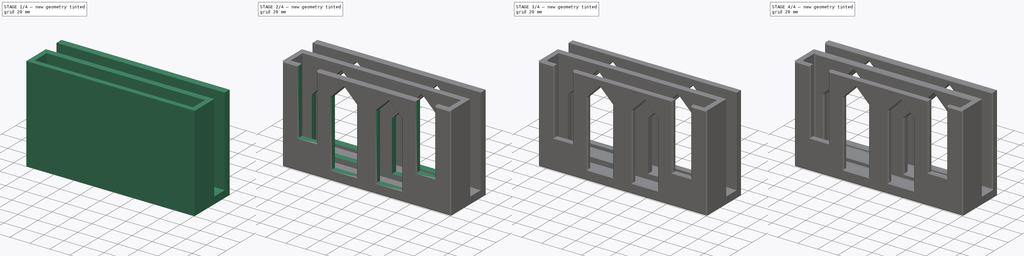
[diagram: build sequence overview — one tinted view per stage of 4, left to right]
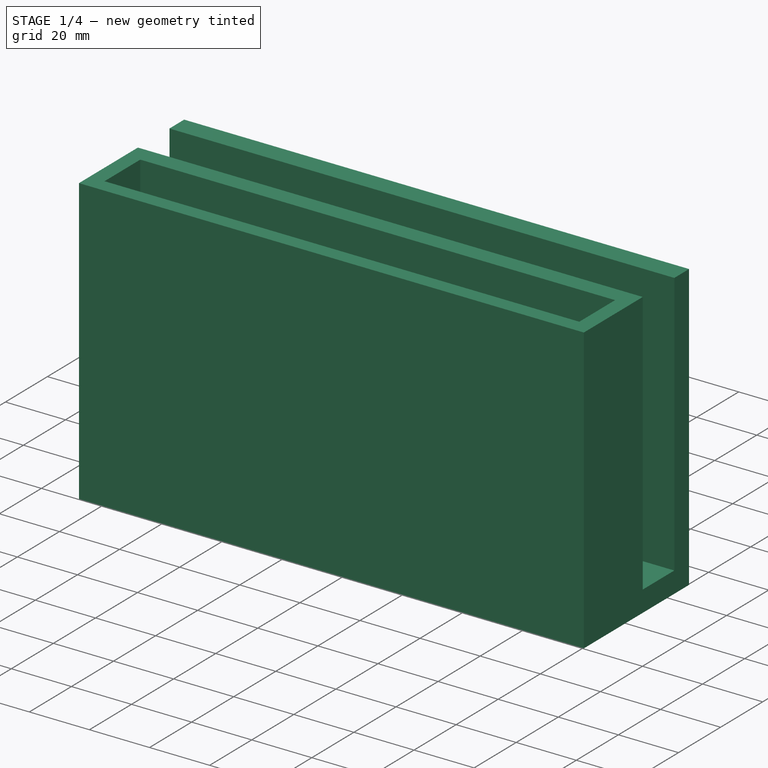
[diagram: stage 1 of 4 — iso view after this stage's code; geometry added in this stage tinted green]
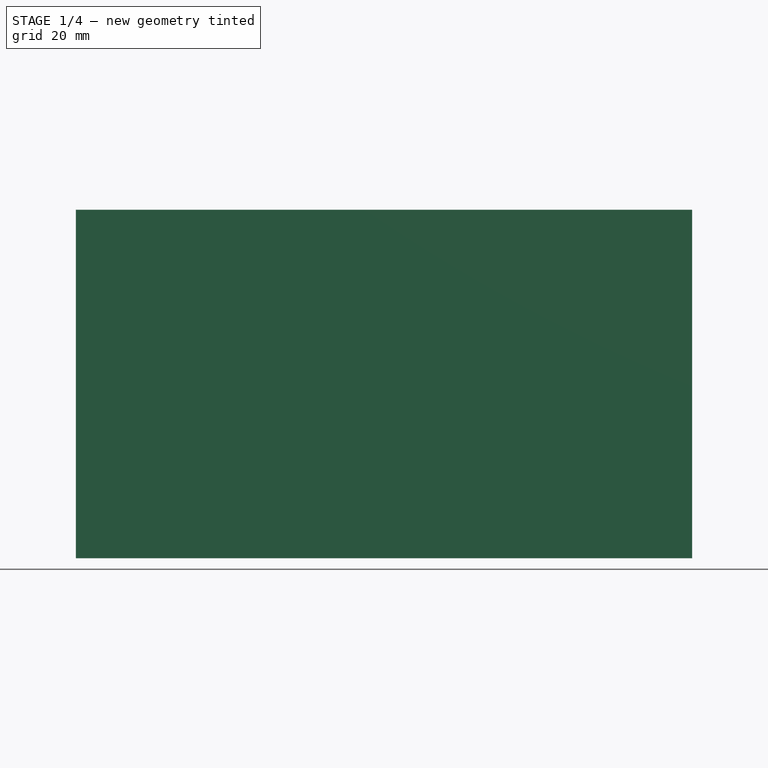
[diagram: stage 1 of 4 — front view after this stage's code; geometry added in this stage tinted green]
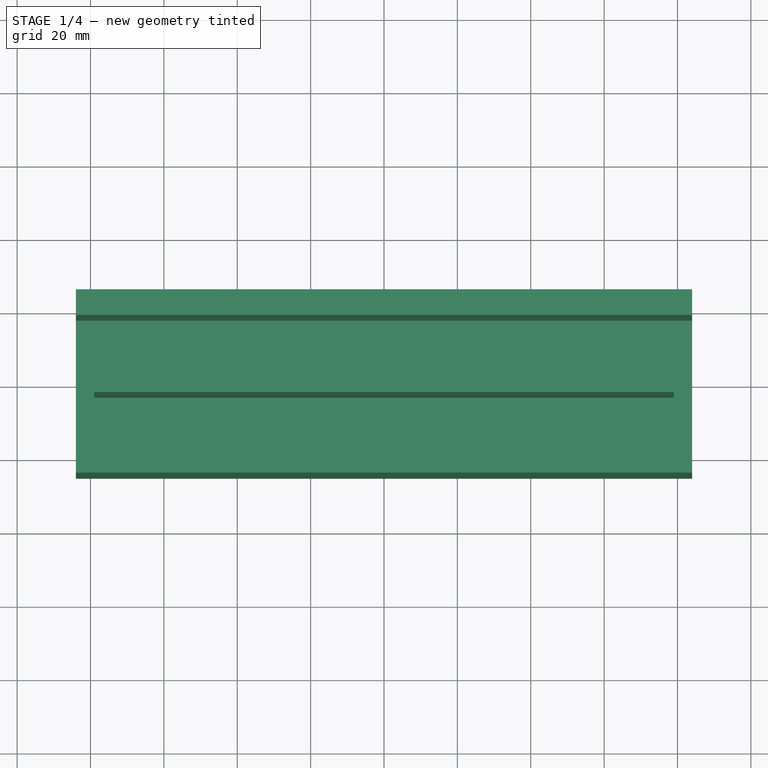
[diagram: stage 1 of 4 — top view after this stage's code; geometry added in this stage tinted green]
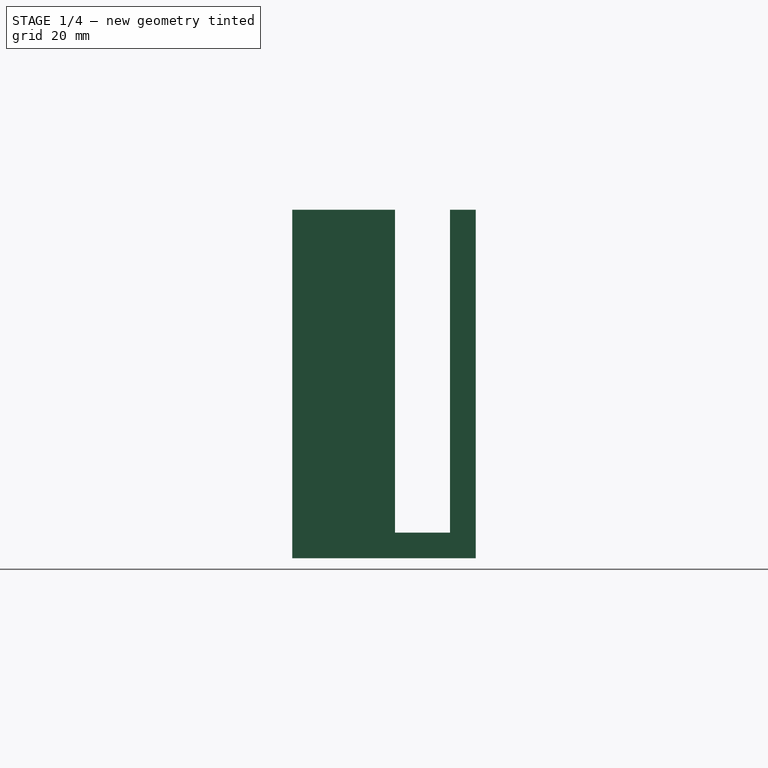
[diagram: stage 1 of 4 — right view after this stage's code; geometry added in this stage tinted green]
FCSTD DOCUMENT  (FreeCAD 0.16R)
Label: SwitchCase
License: All rights reserved
LicenseURL: http://en.wikipedia.org/wiki/All_rights_reserved
objects: Sketcher::SketchObject×5, PartDesign::Chamfer×5, PartDesign::Pocket×4, PartDesign::Pad×1, PartDesign::Fillet×1
note: 21 computed .brp shape members not serialized (recipe doc carries the construction recipe); baked Part::Feature solids carry a one-line shape summary decoded from their .brp

FEATURE [Sketcher::SketchObject] Sketch
  sketch-geometry (4):
    g0: LineSegment StartX=-84 StartY=25 StartZ=0 EndX=84 EndY=25 EndZ=0
    g1: LineSegment StartX=84 StartY=25 StartZ=0 EndX=84 EndY=-25 EndZ=0
    g2: LineSegment StartX=84 StartY=-25 StartZ=0 EndX=-84 EndY=-25 EndZ=0
    g3: LineSegment StartX=-84 StartY=-25 StartZ=0 EndX=-84 EndY=25 EndZ=0
  constraints (11):
    c: Coincident(g0,g1)
    c: Coincident(g1,g2)
    c: Coincident(g2,g3)
    c: Coincident(g3,g0)
    c: Horizontal(g0)
    c: Horizontal(g2)
    c: Vertical(g1)
    c: Vertical(g3)
    c: Symmetric(g0,g2,g-1)
    c: Distance(g1) = 50
    c: Distance(g0) = 168
FEATURE [PartDesign::Pad] Pad
  Length = 95
  Length2 = 100
  Sketch = -> Sketch
  Type = 0
FEATURE [Sketcher::SketchObject] Sketch001
  Placement = pos=(0,0,95) rot=(0,0,1;0rad)
  Support = -> Pad [Face6]
  sketch-geometry (4):
    g0: LineSegment StartX=-100 StartY=18 StartZ=0 EndX=100 EndY=18 EndZ=0
    g1: LineSegment StartX=100 StartY=18 StartZ=0 EndX=100 EndY=3 EndZ=0
    g2: LineSegment StartX=100 StartY=3 StartZ=0 EndX=-100 EndY=3 EndZ=0
    g3: LineSegment StartX=-100 StartY=3 StartZ=0 EndX=-100 EndY=18 EndZ=0
  constraints (12):
    c: Coincident(g0,g1)
    c: Coincident(g1,g2)
    c: Coincident(g2,g3)
    c: Coincident(g3,g0)
    c: Horizontal(g0)
    c: Horizontal(g2)
    c: Vertical(g1)
    c: Vertical(g3)
    c: Distance(g1) = 15
    c: Symmetric(g0,g0,g-2)
    c: Distance(g0) = 200
    c: DistanceY(g0) = 18
FEATURE [PartDesign::Pocket] Pocket
  Length = 88
  Sketch = -> Sketch001
  Type = 0
FEATURE [Sketcher::SketchObject] Sketch002
  Placement = pos=(0,0,95) rot=(0,0,1;0rad)
  Support = -> Pocket [Face9]
  sketch-geometry (4):
    g0: LineSegment StartX=-79 StartY=-3 StartZ=0 EndX=79 EndY=-3 EndZ=0
    g1: LineSegment StartX=79 StartY=-3 StartZ=0 EndX=79 EndY=-20 EndZ=0
    g2: LineSegment StartX=79 StartY=-20 StartZ=0 EndX=-79 EndY=-20 EndZ=0
    g3: LineSegment StartX=-79 StartY=-20 StartZ=0 EndX=-79 EndY=-3 EndZ=0
  constraints (12):
    c: Coincident(g0,g1)
    c: Coincident(g1,g2)
    c: Coincident(g2,g3)
    c: Coincident(g3,g0)
    c: Horizontal(g0)
    c: Horizontal(g2)
    c: Vertical(g1)
    c: Vertical(g3)
    c: Symmetric(g0,g0,g-2)
    c: Distance(g1) = 17
    c: Distance(g0) = 158
    c: DistanceY(g1) = -20
FEATURE [PartDesign::Pocket] Pocket001
  Length = 90
  Sketch = -> Sketch002
  Type = 0
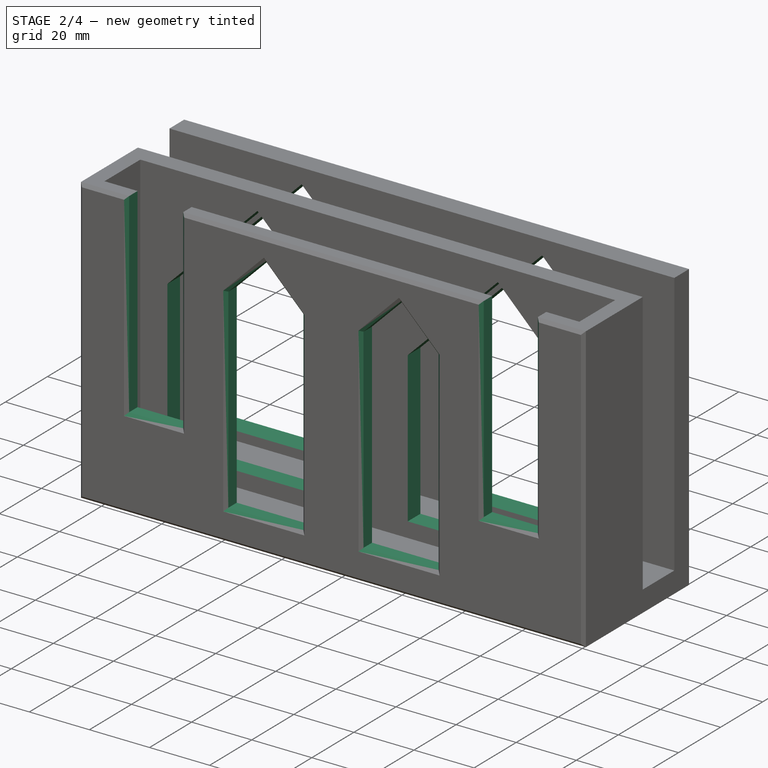
[diagram: stage 2 of 4 — iso view after this stage's code; geometry added in this stage tinted green]
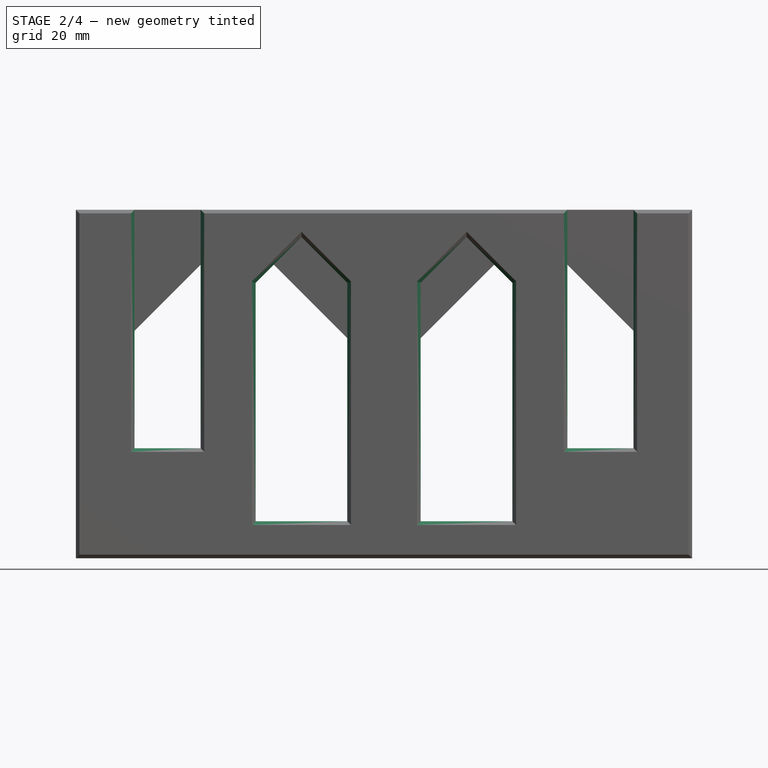
[diagram: stage 2 of 4 — front view after this stage's code; geometry added in this stage tinted green]
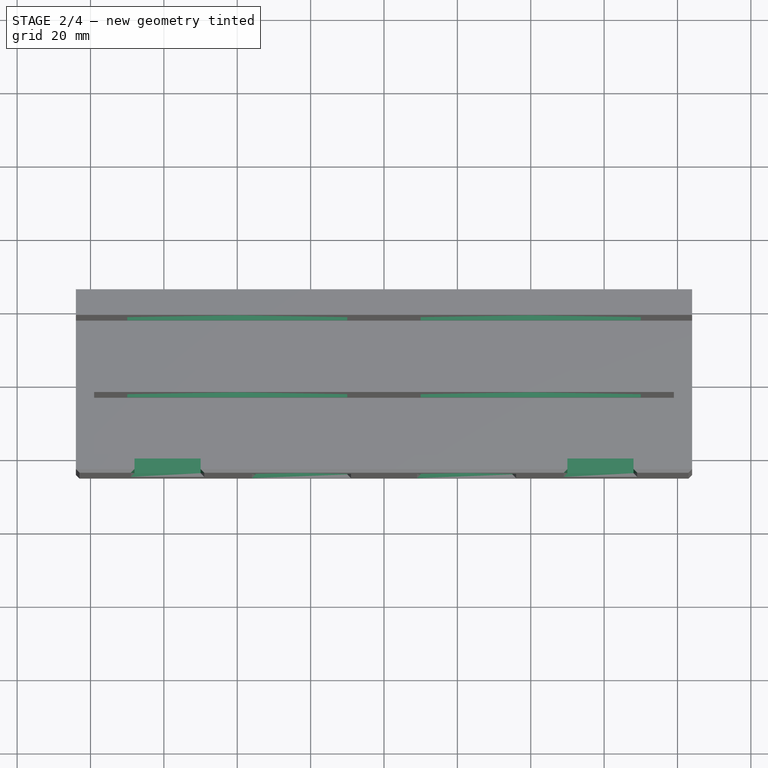
[diagram: stage 2 of 4 — top view after this stage's code; geometry added in this stage tinted green]
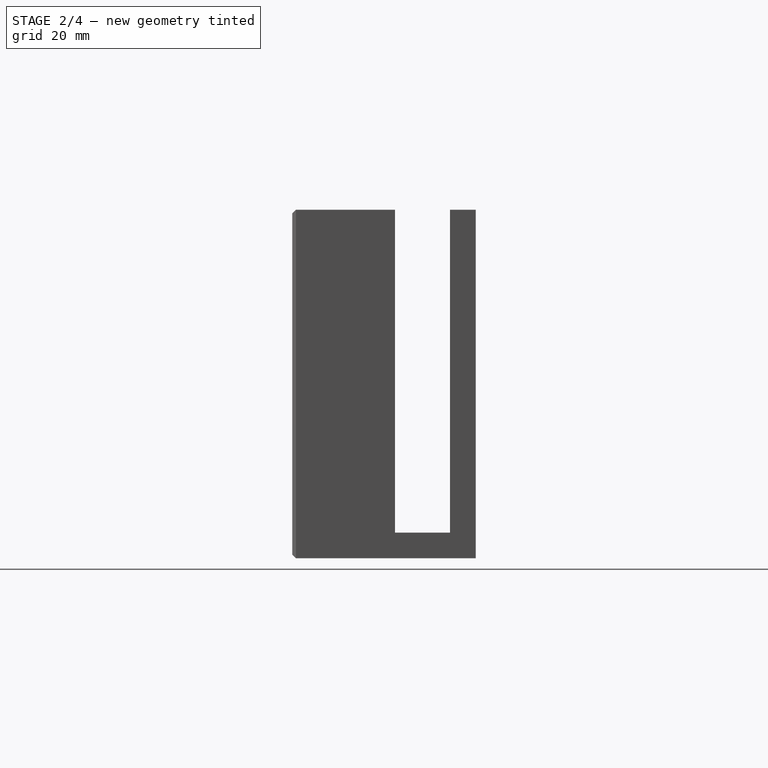
[diagram: stage 2 of 4 — right view after this stage's code; geometry added in this stage tinted green]
FEATURE [Sketcher::SketchObject] Sketch003
  Placement = pos=(0,-25,0) rot=(1,0,0;1.5708rad)
  Support = -> Pocket001 [Face10]
  sketch-geometry (18):
    g0: LineSegment StartX=-10 StartY=75.0798 StartZ=0 EndX=-10 EndY=10.0798 EndZ=0
    g1: LineSegment StartX=-10 StartY=10.0798 StartZ=0 EndX=-35 EndY=10.0798 EndZ=0
    g2: LineSegment StartX=-35 StartY=10.0798 StartZ=0 EndX=-35 EndY=75.0798 EndZ=0
    g3: LineSegment StartX=35 StartY=75.0798 StartZ=0 EndX=35 EndY=10.0798 EndZ=0
    g4: LineSegment StartX=35 StartY=10.0798 StartZ=0 EndX=10 EndY=10.0798 EndZ=0
    g5: LineSegment StartX=10 StartY=10.0798 StartZ=0 EndX=10 EndY=75.0798 EndZ=0
    g6: LineSegment StartX=-35 StartY=75.0798 StartZ=0 EndX=-22.5 EndY=87.5798 EndZ=0
    g7: LineSegment StartX=-22.5 StartY=87.5798 StartZ=0 EndX=-10 EndY=75.0798 EndZ=0
    g8: LineSegment StartX=35 StartY=75.0798 StartZ=0 EndX=22.5 EndY=87.5798 EndZ=0
    g9: LineSegment StartX=22.5 StartY=87.5798 StartZ=0 EndX=10 EndY=75.0798 EndZ=0
    g10: LineSegment StartX=-68 StartY=122.971 StartZ=0 EndX=-50 EndY=122.971 EndZ=0
    g11: LineSegment StartX=-50 StartY=122.971 StartZ=0 EndX=-50 EndY=30 EndZ=0
    g12: LineSegment StartX=-50 StartY=30 StartZ=0 EndX=-68 EndY=30 EndZ=0
    g13: LineSegment StartX=-68 StartY=30 StartZ=0 EndX=-68 EndY=122.971 EndZ=0
    g14: LineSegment StartX=50 StartY=122.971 StartZ=0 EndX=68 EndY=122.971 EndZ=0
    g15: LineSegment StartX=68 StartY=122.971 StartZ=0 EndX=68 EndY=30 EndZ=0
    g16: LineSegment StartX=68 StartY=30 StartZ=0 EndX=50 EndY=30 EndZ=0
    g17: LineSegment StartX=50 StartY=30 StartZ=0 EndX=50 EndY=122.971 EndZ=0
  constraints (50):
    c: Coincident(g0,g1)
    c: Coincident(g1,g2)
    c: Horizontal(g1)
    c: Vertical(g0)
    c: Vertical(g2)
    c: Coincident(g3,g4)
    c: Coincident(g4,g5)
    c: Horizontal(g4)
    c: Vertical(g3)
    c: Vertical(g5)
    c: Symmetric(g5,g0,g-2)
    c: DistanceX(g-1,g5) = 10
    c: Distance(g0) = 65
    c: Coincident(g2,g6)
    c: Coincident(g6,g7)
    c: Coincident(g7,g0)
    c: Coincident(g3,g8)
    c: Coincident(g8,g9)
    c: Coincident(g9,g5)
    c: Equal(g8,g9)
    c: Equal(g9,g7)
    c: Equal(g7,g6)
    c: Angle(g6,g7) = 1.5708
    c: Equal(g2,g5)
    c: Equal(g3,g5)
    c: Equal(g2,g0)
    c: Distance(g1) = 25
    c: Equal(g4,g1)
    c: Coincident(g10,g11)
    c: Coincident(g11,g12)
    c: Coincident(g12,g13)
    c: Coincident(g13,g10)
    c: Horizontal(g10)
    c: Horizontal(g12)
    c: Vertical(g11)
    c: Vertical(g13)
    c: Coincident(g14,g15)
    c: Coincident(g15,g16)
    c: Coincident(g16,g17)
    c: Coincident(g17,g14)
    c: Horizontal(g14)
    c: Horizontal(g16)
    c: Vertical(g15)
    c: Vertical(g17)
    c: Equal(g14,g10)
    c: Distance(g10) = 18
    c: Symmetric(g10,g14,g-2)
    c: DistanceX(g14) = 50
    c: DistanceY(g12) = 30
    c: DistanceY(g15) = 30
FEATURE [PartDesign::Pocket] Pocket002
  Length = 5
  Sketch = -> Sketch003
  Type = 0
FEATURE [Sketcher::SketchObject] Sketch004
  Placement = pos=(0,25,0) rot=(0,0.707107,0.707107;3.14159rad)
  Support = -> Pocket002 [Face1]
  sketch-geometry (10):
    g0: LineSegment StartX=-40 StartY=90 StartZ=0 EndX=-70 EndY=60 EndZ=0
    g1: LineSegment StartX=-70 StartY=60 StartZ=0 EndX=-70 EndY=10 EndZ=0
    g2: LineSegment StartX=-70 StartY=10 StartZ=0 EndX=-10 EndY=10 EndZ=0
    g3: LineSegment StartX=-10 StartY=10 StartZ=0 EndX=-10 EndY=60 EndZ=0
    g4: LineSegment StartX=-10 StartY=60 StartZ=0 EndX=-40 EndY=90 EndZ=0
    g5: LineSegment StartX=40 StartY=90 StartZ=0 EndX=10 EndY=60 EndZ=0
    g6: LineSegment StartX=10 StartY=60 StartZ=0 EndX=10 EndY=10 EndZ=0
    g7: LineSegment StartX=10 StartY=10 StartZ=0 EndX=70 EndY=10 EndZ=0
    g8: LineSegment StartX=70 StartY=10 StartZ=0 EndX=70 EndY=60 EndZ=0
    g9: LineSegment StartX=70 StartY=60 StartZ=0 EndX=40 EndY=90 EndZ=0
  constraints (31):
    c: Coincident(g0,g1)
    c: Vertical(g1)
    c: Coincident(g1,g2)
    c: Horizontal(g2)
    c: Coincident(g2,g3)
    c: Vertical(g3)
    c: Coincident(g3,g4)
    c: Coincident(g4,g0)
    c: Coincident(g5,g6)
    c: Vertical(g6)
    c: Coincident(g6,g7)
    c: Horizontal(g7)
    c: Coincident(g7,g8)
    c: Vertical(g8)
    c: Coincident(g8,g9)
    c: Coincident(g9,g5)
    c: Equal(g9,g5)
    c: Equal(g5,g4)
    c: Equal(g4,g0)
    c: Angle(g0,g4) = 1.5708
    c: Angle(g5,g9) = 1.5708
    c: Equal(g1,g3)
    c: Equal(g3,g6)
    c: Equal(g6,g8)
    c: DistanceY(g6) = 10
    c: DistanceY(g2) = 10
    c: Symmetric(g5,g3,g-2)
    c: Equal(g2,g7)
    c: Distance(g2) = 60
    c: Distance(g3,g5) = 20
    c: Distance(g3) = 50
FEATURE [PartDesign::Pocket] Pocket003
  Length = 30
  Sketch = -> Sketch004
  Type = 0
FEATURE [PartDesign::Chamfer] Chamfer
  Base = -> Pocket003 [Edge23,Edge21,Edge64,Edge73,Edge74,Edge75,Edge76,Edge77,Edge78,Edge79,Edge72,Edge26,Edge80,Edge81,Edge82,Edge83,Edge84,Edge85,Edge86,Edge87,Edge88,Edge89]
  Size = 1
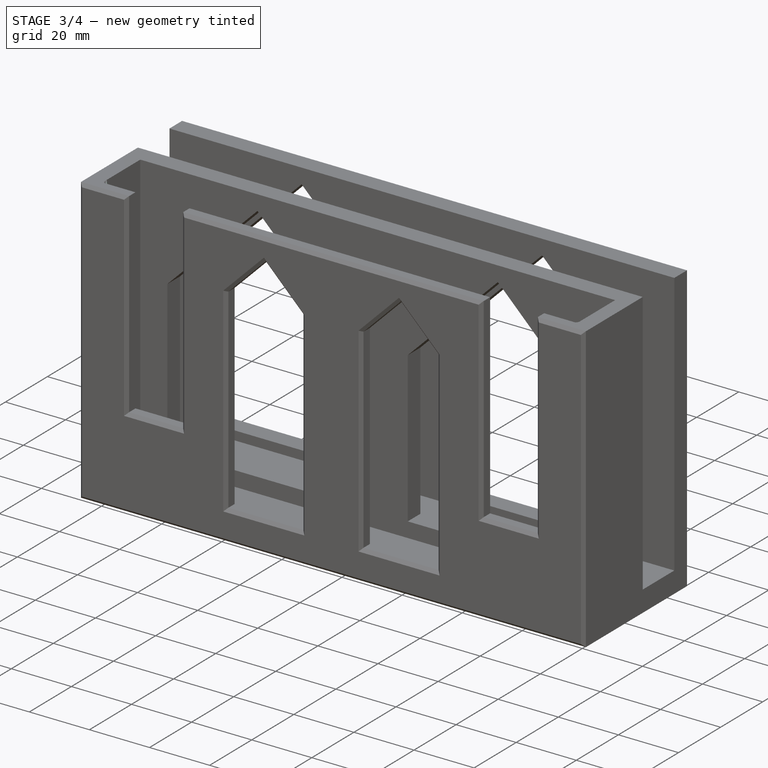
[diagram: stage 3 of 4 — iso view after this stage's code; geometry added in this stage tinted green]
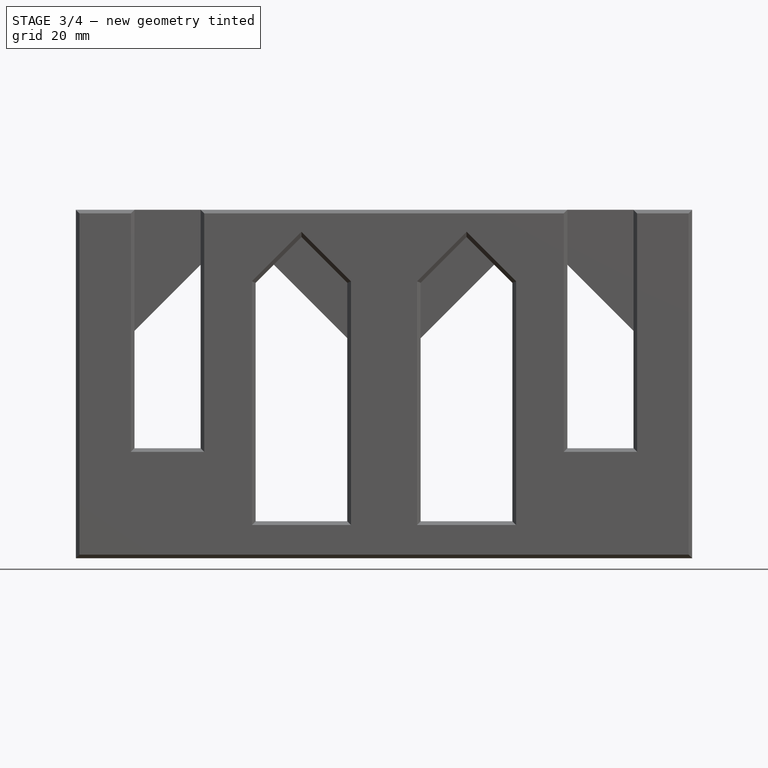
[diagram: stage 3 of 4 — front view after this stage's code; geometry added in this stage tinted green]
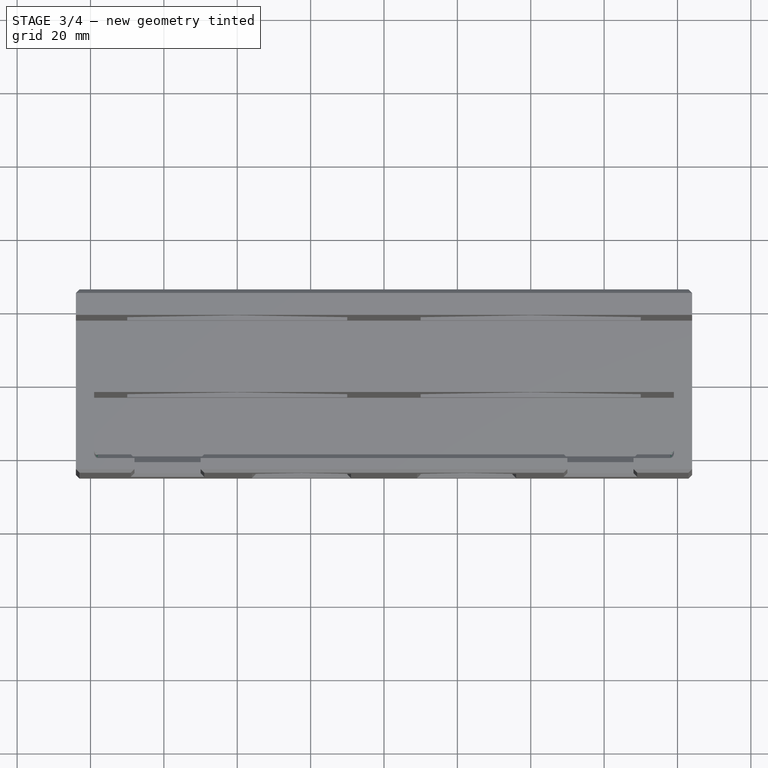
[diagram: stage 3 of 4 — top view after this stage's code; geometry added in this stage tinted green]
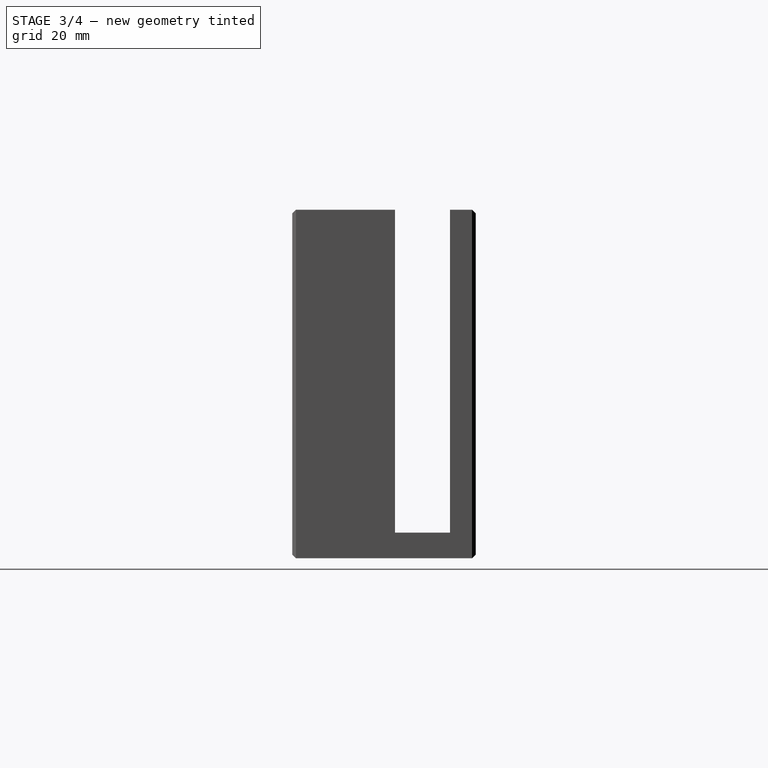
[diagram: stage 3 of 4 — right view after this stage's code; geometry added in this stage tinted green]
FEATURE [PartDesign::Chamfer] Chamfer001
  Base = -> Chamfer [Edge3,Edge11,Edge15,Edge16,Edge17,Edge18,Edge19,Edge20,Edge21,Edge22,Edge23,Edge24,Edge25,Edge26]
  Size = 1
FEATURE [PartDesign::Chamfer] Chamfer002
  Base = -> Chamfer001 [Edge30,Edge100,Edge101,Edge102,Edge103,Edge104,Edge105,Edge98,Edge23,Edge106,Edge107,Edge108,Edge109,Edge110,Edge111,Edge112,Edge113,Edge114,Edge115,Edge116,Edge117,Edge118]
  Size = 1
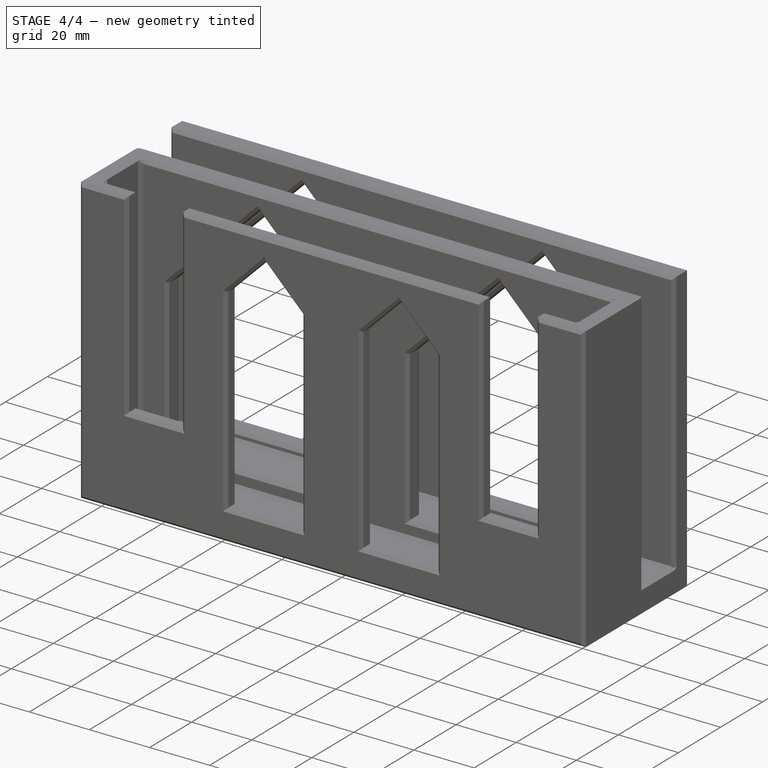
[diagram: stage 4 of 4 — iso view after this stage's code; geometry added in this stage tinted green]
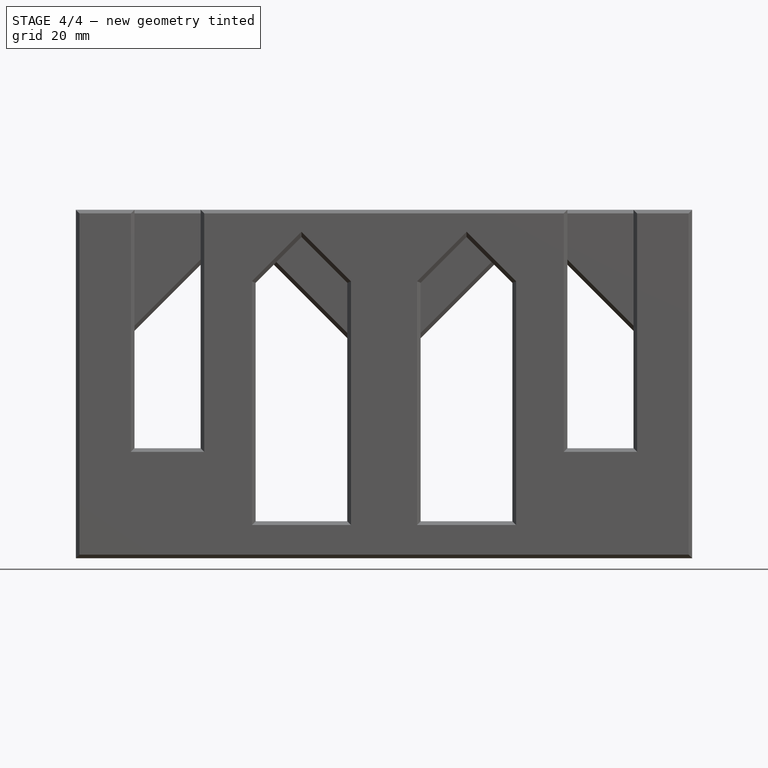
[diagram: stage 4 of 4 — front view after this stage's code; geometry added in this stage tinted green]
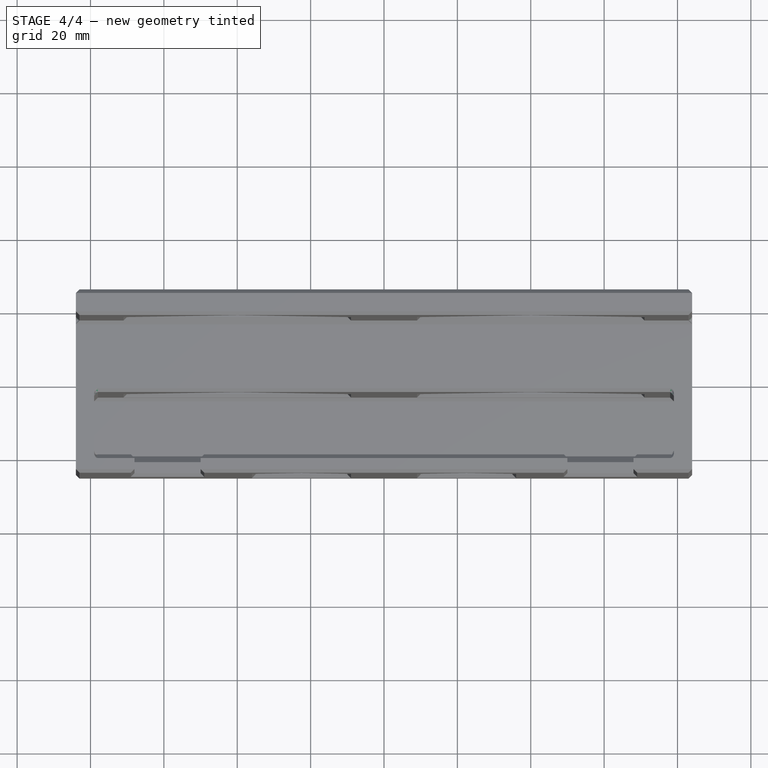
[diagram: stage 4 of 4 — top view after this stage's code; geometry added in this stage tinted green]
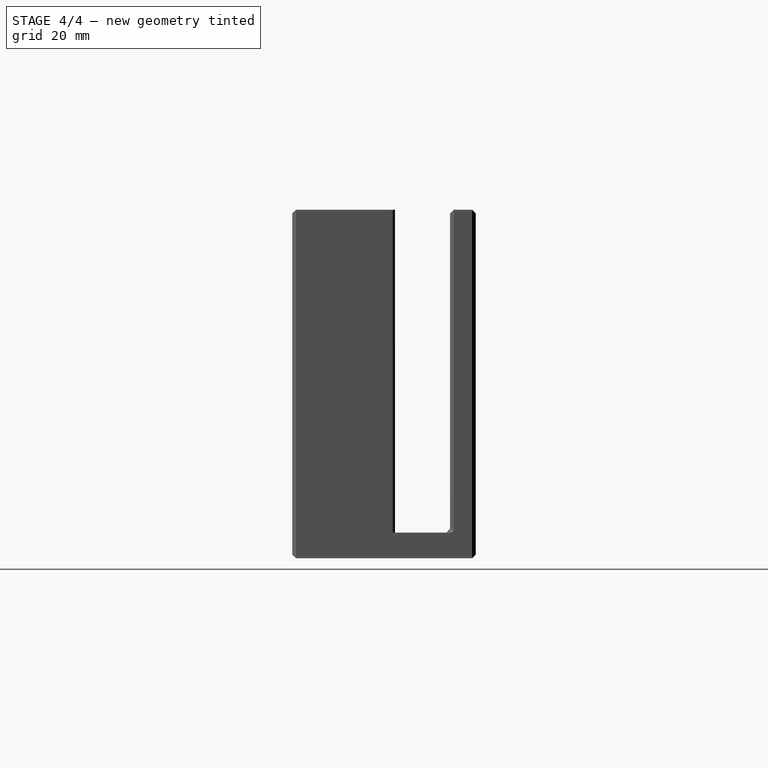
[diagram: stage 4 of 4 — right view after this stage's code; geometry added in this stage tinted green]
FEATURE [PartDesign::Chamfer] Chamfer003
  Base = -> Chamfer002 [Edge33,Edge8,Edge47,Edge48,Edge49,Edge50,Edge51,Edge52,Edge53,Edge54,Edge55,Edge56,Edge57,Edge58]
  Size = 1
FEATURE [PartDesign::Chamfer] Chamfer004
  Base = -> Chamfer003 [Edge144,Edge44,Edge68,Edge145,Edge146,Edge147,Edge148,Edge149,Edge150,Edge151,Edge152,Edge153,Edge154,Edge155]
  Size = 1
FEATURE [PartDesign::Fillet] Fillet
  Base = -> Chamfer004 [Edge30,Edge8,Edge33,Edge36,Edge35,Edge38]
  Radius = 1
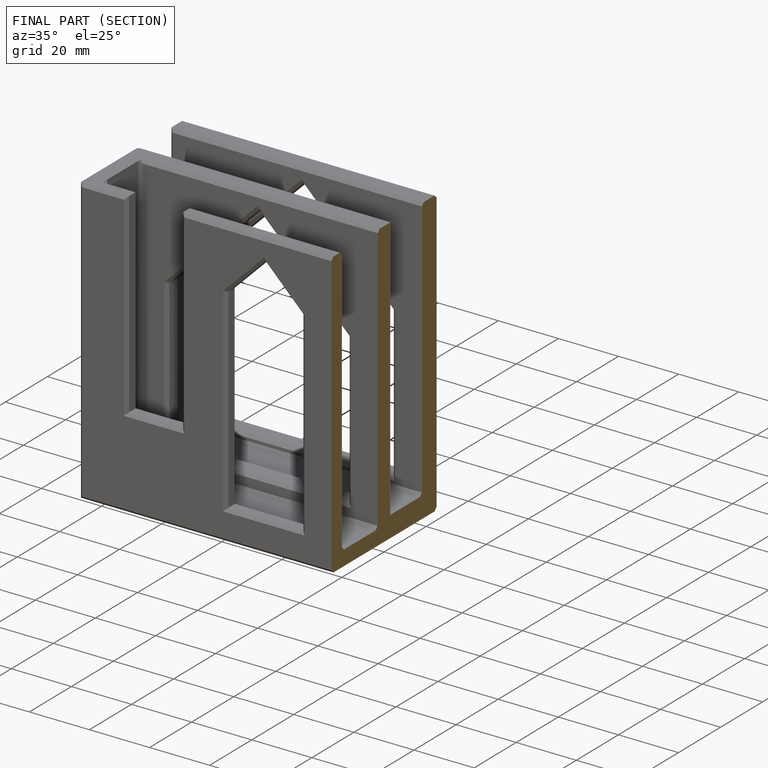
[diagram: finished part — half-section view (interior)]
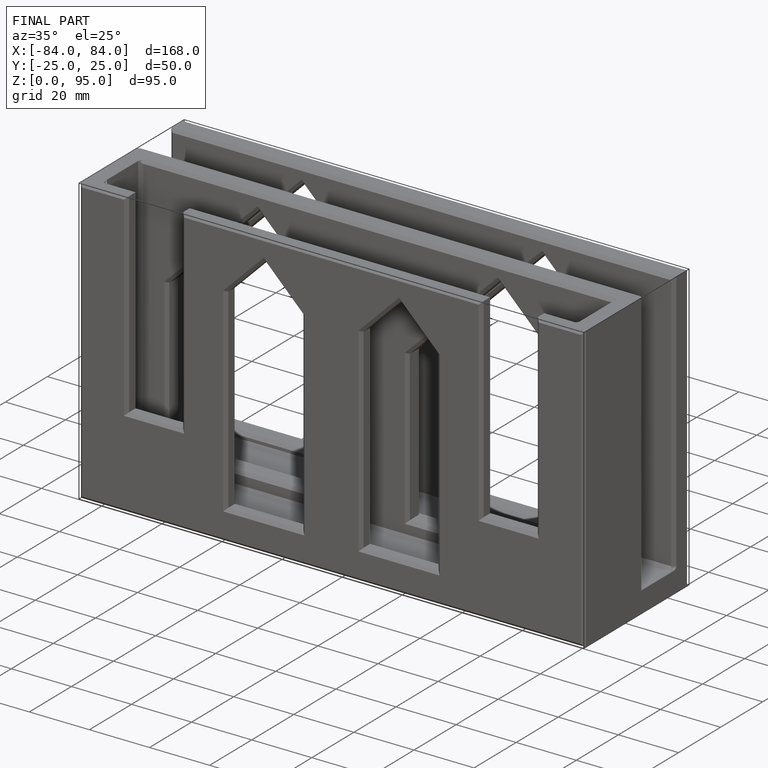
[diagram: finished part — iso view with bounding-box wireframe]
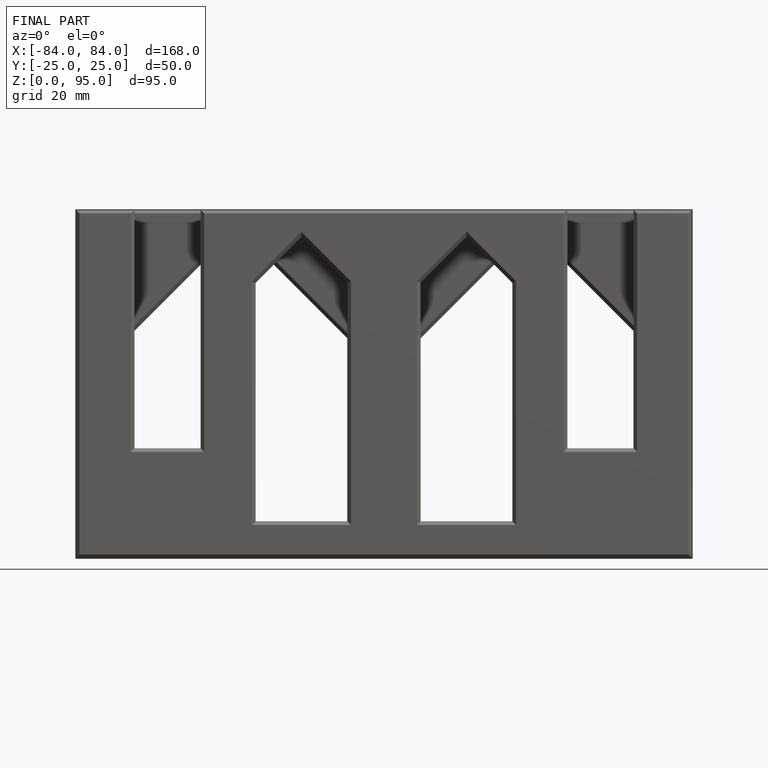
[diagram: finished part — front view with bounding-box wireframe]
